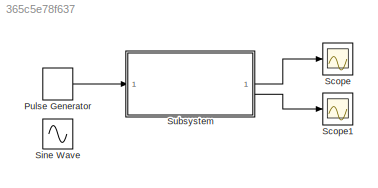
MODEL slx_365c5e78f637
KIND model
CONFIG AbsTol = auto
CONFIG EnableMultiTasking = off
CONFIG FixedStep = auto
CONFIG InitFcn = R = 8.70;\nKt = 0.0334;\nKe = 0.0334;\nJ = 1.80e-6;\nL = 0.001;\nb = 0.000;
CONFIG MaxStep = auto
CONFIG MinStep = auto
CONFIG RelTol = 1e-3
CONFIG SampleTimeConstraint = Unconstrained
CONFIG SolverName = VariableStepAuto
CONFIG StartTime = 0.0
CONFIG StopTime = 10.0
BLOCK [DiscretePulseGenerator] Pulse Generator
  PulseType = Time based
  PulseWidth = 50
BLOCK [Scope] Scope
  Floating = off
  NumInputPorts = 1
  ScopeSpecificationString = Simulink.scopes.TimeScopeBlockCfg('CurrentConfiguration', extmgr.ConfigurationSet(extmgr.Configuration('Core','General UI',true),extmgr.Configuration('Core','Source UI',true),extmgr.Configuration('Sources','WiredSimulink',true),extmgr.Configuration('Visuals','Time Domain',true,'SerializedDisplays',{struct('MinYLimReal','-33.6301','MaxYLimReal','302.67088','YLabelReal','','MinYLimMag','0.00000','Ma...<+1367ch>
BLOCK [Scope] Scope1
  Floating = off
  NumInputPorts = 1
  ScopeSpecificationString = Simulink.scopes.TimeScopeBlockCfg('CurrentConfiguration', extmgr.ConfigurationSet(extmgr.Configuration('Core','General UI',true),extmgr.Configuration('Core','Source UI',true),extmgr.Configuration('Sources','WiredSimulink',true,'DataLoggingVariableName','ScopeData1'),extmgr.Configuration('Visuals','Time Domain',true,'SerializedDisplays',{struct('MinYLimReal','-3.74283','MaxYLimReal','33.68295','YLa...<+1399ch>
BLOCK [Sin] Sine Wave
  Frequency = 3
  SampleTime = 0
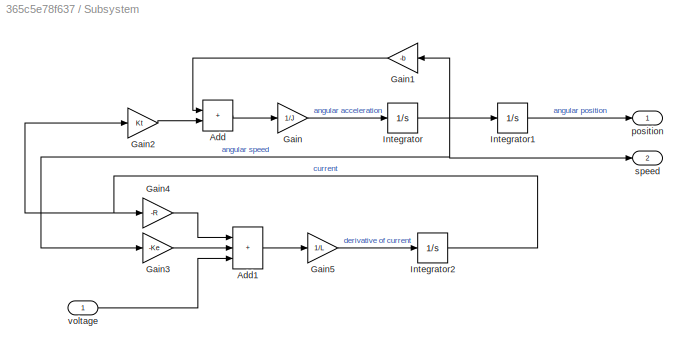
BLOCK [SubSystem] Subsystem
BLOCK [Sum] Subsystem/Add
  IconShape = rectangular
BLOCK [Sum] Subsystem/Add1
  IconShape = rectangular
  Inputs = +++
BLOCK [Gain] Subsystem/Gain
  Gain = 1/J
BLOCK [Gain] Subsystem/Gain1
  Gain = -b
  NameLocation = top
BLOCK [Gain] Subsystem/Gain2
  Gain = Kt
BLOCK [Gain] Subsystem/Gain3
  Gain = -Ke
BLOCK [Gain] Subsystem/Gain4
  Gain = -R
BLOCK [Gain] Subsystem/Gain5
  Gain = 1/L
BLOCK [Integrator] Subsystem/Integrator
BLOCK [Integrator] Subsystem/Integrator1
BLOCK [Integrator] Subsystem/Integrator2
BLOCK [Outport] Subsystem/position
BLOCK [Outport] Subsystem/speed
  Port = 2
BLOCK [Inport] Subsystem/voltage
LINE Pulse Generator:1 -> Subsystem:1
LINE Subsystem/Add1:1 -> Subsystem/Gain5:1
LINE Subsystem/Add:1 -> Subsystem/Gain:1
LINE Subsystem/Gain1:1 -> Subsystem/Add:1
LINE Subsystem/Gain2:1 -> Subsystem/Add:2
LINE Subsystem/Gain3:1 -> Subsystem/Add1:2
LINE Subsystem/Gain4:1 -> Subsystem/Add1:1
LINE Subsystem/Gain5:1 -> Subsystem/Integrator2:1
LINE Subsystem/Gain:1 -> Subsystem/Integrator:1
LINE Subsystem/Integrator1:1 -> Subsystem/position:1
NET Subsystem/Integrator2:1 -> Subsystem/Gain2:1, Subsystem/Gain4:1
NET Subsystem/Integrator:1 -> Subsystem/Gain1:1, Subsystem/Gain3:1, Subsystem/Integrator1:1, Subsystem/speed:1
LINE Subsystem/voltage:1 -> Subsystem/Add1:3
LINE Subsystem:1 -> Scope:1
LINE Subsystem:2 -> Scope1:1
note: NET lines group one-source signal fan-out (src -> all destinations, sorted); 1:1 wires keep LINE
